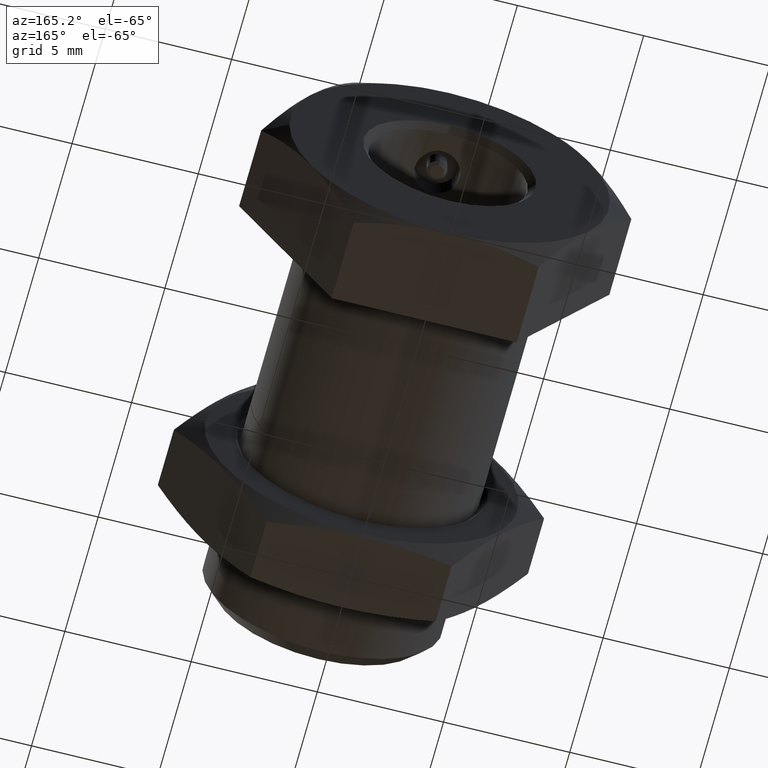
[diagram: clean part render]
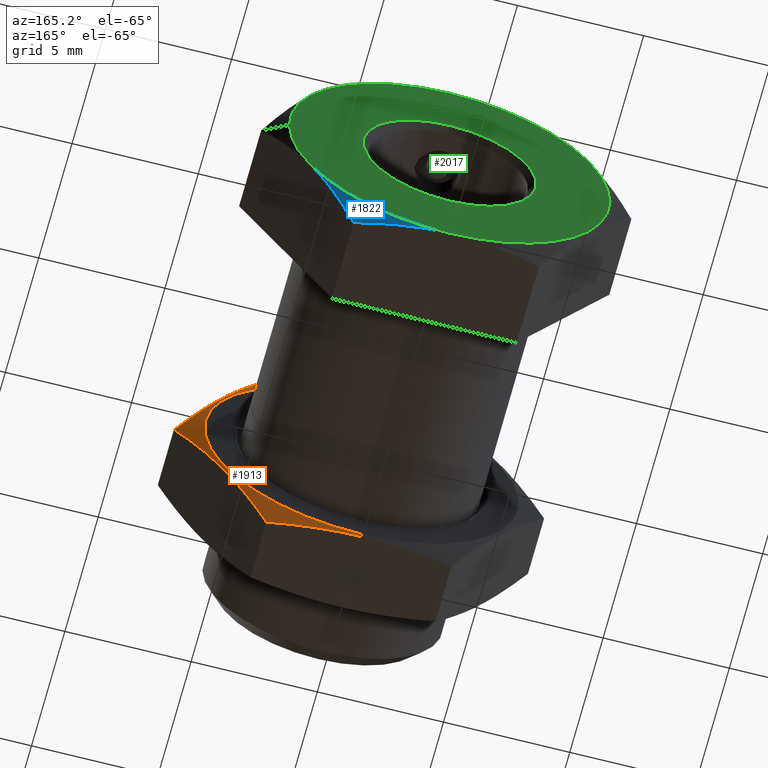
[diagram: same view with three faces highlighted in distinct colors, each labeled with its STEP entity id]
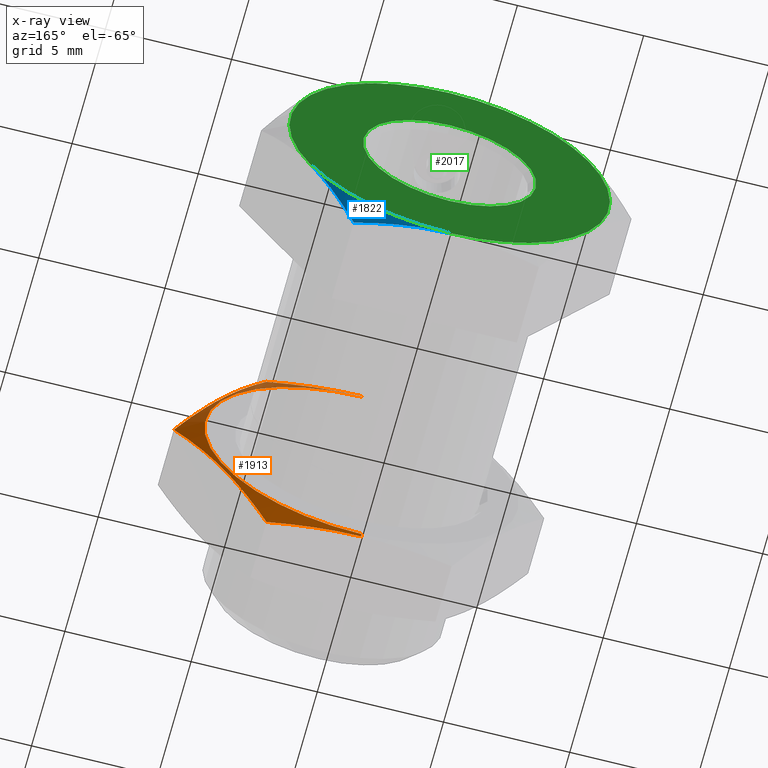
[diagram: x-ray of the same camera — body ghosted, the three highlighted faces saturated]
A machine part, auxiliary view with three faces highlighted in distinct colors.
The next image is the same camera in x-ray (body ghosted, the three faces saturated) — at least one of them is partly hidden behind the body in this view.
Their STEP definitions:

[orange] entity #1913 — the highlighted conical surface has half-angle 71.045 deg.
#116 = DIRECTION ( 'NONE',  ( 0.0000000000000000000, -0.3248216508052531000, -0.9457752878819314400 ) ) ;
#117 = VECTOR ( 'NONE', #116, 1000.000000000000100 ) ;
#119 = CARTESIAN_POINT ( 'NONE',  ( 7.682096070792249700E-015, -3.367507870261867700, -6.222999999999999000 ) ) ;
#120 = LINE ( 'NONE', #119, #117 ) ;
#164 = CARTESIAN_POINT ( 'NONE',  ( 7.682111076404425900E-015, -3.411125366067509800, -6.350000000000008500 ) ) ;
#165 = CARTESIAN_POINT ( 'NONE',  ( 3.666174209354143600, -3.748507870261866200, -6.350000000000008500 ) ) ;
#176 = CARTESIAN_POINT ( 'NONE',  ( 7.682111076404425900E-015, -3.411125366067509800, -6.350000000000008500 ) ) ;
#183 = CARTESIAN_POINT ( 'NONE',  ( 3.666174209354143600, -3.748507870261866200, -6.350000000000008500 ) ) ;
#195 = CARTESIAN_POINT ( 'NONE',  ( 2.446884542987390000, -3.539128492668910400, -6.350000000000008500 ) ) ;
#199 = B_SPLINE_CURVE_WITH_KNOTS ( 'NONE', 3,
 ( #183, #195, #200, #176 ),
 .UNSPECIFIED., .F., .F.,
 ( 4, 4 ),
 ( 0.01358308247355690200, 0.01728310669444302300 ),
 .UNSPECIFIED. ) ;
#200 = CARTESIAN_POINT ( 'NONE',  ( 1.225270426781273500, -3.411125366067509800, -6.350000000000008500 ) ) ;
#222 = B_SPLINE_CURVE_WITH_KNOTS ( 'NONE', 3,
 ( #238, #237, #236, #235, #234 ),
 .UNSPECIFIED., .F., .F.,
 ( 4, 1, 4 ),
 ( 2.309401076775709000E-007, 0.003666405149461804700, 0.007332579358815932400 ),
 .UNSPECIFIED. ) ;
#224 = B_SPLINE_CURVE_WITH_KNOTS ( 'NONE', 3,
 ( #261, #260, #259, #258 ),
 .UNSPECIFIED., .F., .F.,
 ( 4, 4 ),
 ( 0.009901791686967418800, 0.01361043998818569500 ),
 .UNSPECIFIED. ) ;
#226 = CARTESIAN_POINT ( 'NONE',  ( 7.682096070792249700E-015, -3.367507870261867700, -6.222999999999999000 ) ) ;
#234 = CARTESIAN_POINT ( 'NONE',  ( 3.666174209354143600, -3.748507870261866200, -6.350000000000008500 ) ) ;
#235 = CARTESIAN_POINT ( 'NONE',  ( 4.277203244246500400, -3.538653095722176500, -5.291666666666675800 ) ) ;
#236 = CARTESIAN_POINT ( 'NONE',  ( 5.499261314031207900, -3.283597636412850300, -3.175000000000006000 ) ) ;
#237 = CARTESIAN_POINT ( 'NONE',  ( 6.721319383815915300, -3.538653095722174200, -1.058333333333336000 ) ) ;
#238 = CARTESIAN_POINT ( 'NONE',  ( 7.332348418708273900, -3.748507870261867500, -2.494517478465203100E-015 ) ) ;
#258 = CARTESIAN_POINT ( 'NONE',  ( 3.666174209354145400, -3.748507870261867500, 6.350000000000012100 ) ) ;
#259 = CARTESIAN_POINT ( 'NONE',  ( 2.446884542987389600, -3.539128492668912200, 6.350000000000016500 ) ) ;
#260 = CARTESIAN_POINT ( 'NONE',  ( 1.225270426781273100, -3.411125366067512900, 6.350000000000016500 ) ) ;
#261 = CARTESIAN_POINT ( 'NONE',  ( 8.459761793861205600E-015, -3.411125366067512900, 6.350000000000017400 ) ) ;
#1860 = EDGE_LOOP ( 'NONE', ( #2226, #2217, #2184, #1911, #2219, #2189, #2191 ) ) ;
#1907 = EDGE_CURVE ( 'NONE', #1917, #2227, #2713, .T. ) ;
#1909 = VERTEX_POINT ( 'NONE', #2845 ) ;
#1911 = ORIENTED_EDGE ( 'NONE', *, *, #1924, .T. ) ;
#1913 = ADVANCED_FACE ( 'NONE', ( #2839 ), #2773, .T. ) ;
#1915 = VERTEX_POINT ( 'NONE', #2766 ) ;
#1917 = VERTEX_POINT ( 'NONE', #2765 ) ;
#1918 = EDGE_CURVE ( 'NONE', #1917, #1909, #2764, .T. ) ;
#1923 = VERTEX_POINT ( 'NONE', #2759 ) ;
#1924 = EDGE_CURVE ( 'NONE', #1915, #1923, #2752, .T. ) ;
#2180 = EDGE_CURVE ( 'NONE', #2227, #2206, #120, .T. ) ;
#2184 = ORIENTED_EDGE ( 'NONE', *, *, #2225, .T. ) ;
#2189 = ORIENTED_EDGE ( 'NONE', *, *, #2190, .T. ) ;
#2190 = EDGE_CURVE ( 'NONE', #2205, #2206, #199, .T. ) ;
#2191 = ORIENTED_EDGE ( 'NONE', *, *, #2180, .F. ) ;
#2205 = VERTEX_POINT ( 'NONE', #165 ) ;
#2206 = VERTEX_POINT ( 'NONE', #164 ) ;
#2217 = ORIENTED_EDGE ( 'NONE', *, *, #1918, .T. ) ;
#2219 = ORIENTED_EDGE ( 'NONE', *, *, #2220, .T. ) ;
#2220 = EDGE_CURVE ( 'NONE', #1923, #2205, #222, .T. ) ;
#2225 = EDGE_CURVE ( 'NONE', #1909, #1915, #224, .T. ) ;
#2226 = ORIENTED_EDGE ( 'NONE', *, *, #1907, .F. ) ;
#2227 = VERTEX_POINT ( 'NONE', #226 ) ;
#2713 = CIRCLE ( 'NONE', #2849, 6.222999999999999000 ) ;
#2744 = CARTESIAN_POINT ( 'NONE',  ( 7.332348418708273900, -3.748507870261867500, -2.494517478465203100E-015 ) ) ;
#2745 = CARTESIAN_POINT ( 'NONE',  ( 6.721319383815918900, -3.538653095722175100, 1.058333333333334700 ) ) ;
#2746 = CARTESIAN_POINT ( 'NONE',  ( 5.499261314031211400, -3.283597636412850300, 3.175000000000006900 ) ) ;
#2749 = CARTESIAN_POINT ( 'NONE',  ( 4.277203244246500400, -3.538653095722175600, 5.291666666666675800 ) ) ;
#2750 = CARTESIAN_POINT ( 'NONE',  ( 3.666174209354145400, -3.748507870261867500, 6.350000000000012100 ) ) ;
#2752 = B_SPLINE_CURVE_WITH_KNOTS ( 'NONE', 3,
 ( #2750, #2749, #2746, #2745, #2744 ),
 .UNSPECIFIED., .F., .F.,
 ( 4, 1, 4 ),
 ( 2.309401076795080300E-007, 0.003666405149461809000, 0.007332579358815940200 ),
 .UNSPECIFIED. ) ;
#2759 = CARTESIAN_POINT ( 'NONE',  ( 7.332348418708273900, -3.748507870261867500, -2.494517478465203100E-015 ) ) ;
#2761 = DIRECTION ( 'NONE',  ( 1.158240679017273500E-016, -0.3248216508052531000, 0.9457752878819314400 ) ) ;
#2762 = VECTOR ( 'NONE', #2761, 1000.000000000000100 ) ;
#2763 = CARTESIAN_POINT ( 'NONE',  ( 8.444193773901648200E-015, -3.367507870261867700, 6.222999999999999000 ) ) ;
#2764 = LINE ( 'NONE', #2763, #2762 ) ;
#2765 = CARTESIAN_POINT ( 'NONE',  ( 8.444193773901648200E-015, -3.367507870261867700, 6.222999999999999000 ) ) ;
#2766 = CARTESIAN_POINT ( 'NONE',  ( 3.666174209354145400, -3.748507870261867500, 6.350000000000012100 ) ) ;
#2770 = DIRECTION ( 'NONE',  ( 0.0000000000000000000, 0.0000000000000000000, -1.000000000000000000 ) ) ;
#2771 = DIRECTION ( 'NONE',  ( 0.0000000000000000000, -1.000000000000000000, 0.0000000000000000000 ) ) ;
#2772 = AXIS2_PLACEMENT_3D ( 'NONE', #2775, #2771, #2770 ) ;
#2773 = CONICAL_SURFACE ( 'NONE', #2772, 6.222999999999999000, 1.239973179411668200 ) ;
#2775 = CARTESIAN_POINT ( 'NONE',  ( 7.682096070792249700E-015, -3.367507870261867700, 1.075677355000073600E-016 ) ) ;
#2839 = FACE_OUTER_BOUND ( 'NONE', #1860, .T. ) ;
#2845 = CARTESIAN_POINT ( 'NONE',  ( 8.459761793861205600E-015, -3.411125366067512900, 6.350000000000017400 ) ) ;
#2846 = DIRECTION ( 'NONE',  ( 0.0000000000000000000, 0.0000000000000000000, 1.000000000000000000 ) ) ;
#2847 = DIRECTION ( 'NONE',  ( 0.0000000000000000000, 1.000000000000000000, 0.0000000000000000000 ) ) ;
#2848 = CARTESIAN_POINT ( 'NONE',  ( 7.682096070792249700E-015, -3.367507870261867700, 1.075677355000073600E-016 ) ) ;
#2849 = AXIS2_PLACEMENT_3D ( 'NONE', #2848, #2847, #2846 ) ;

[blue] entity #1822 — the highlighted conical surface has half-angle 62.655 deg.
#63 = CARTESIAN_POINT ( 'NONE',  ( 3.070962758381275300, 9.488400292063285900, -6.349999999999985400 ) ) ;
#64 = CARTESIAN_POINT ( 'NONE',  ( 2.469031070083875300, 9.616122389518416500, -6.349999999999989000 ) ) ;
#65 = B_SPLINE_CURVE_WITH_KNOTS ( 'NONE', 3,
 ( #91, #63, #64, #79, #71, #80 ),
 .UNSPECIFIED., .F., .F.,
 ( 4, 2, 4 ),
 ( 0.003390406795999886100, 0.005234762367035991500, 0.007079117938072096800 ),
 .UNSPECIFIED. ) ;
#71 = CARTESIAN_POINT ( 'NONE',  ( 0.6192550958376271700, 9.842500000000008200, -6.349999999999992500 ) ) ;
#78 = CARTESIAN_POINT ( 'NONE',  ( 3.666174209354119200, 9.334499999999998500, -6.349999999999998800 ) ) ;
#79 = CARTESIAN_POINT ( 'NONE',  ( 1.245196941978092400, 9.793771977738952500, -6.349999999999989900 ) ) ;
#80 = CARTESIAN_POINT ( 'NONE',  ( 6.009258394948640900E-015, 9.842500000000001100, -6.349999999999999600 ) ) ;
#91 = CARTESIAN_POINT ( 'NONE',  ( 3.666174209354119200, 9.334499999999998500, -6.349999999999998800 ) ) ;
#98 = CARTESIAN_POINT ( 'NONE',  ( 6.009258394948640900E-015, 9.842500000000001100, -6.349999999999999600 ) ) ;
#328 = DIRECTION ( 'NONE',  ( 0.0000000000000000000, 0.0000000000000000000, 1.000000000000000000 ) ) ;
#537 = DIRECTION ( 'NONE',  ( 0.0000000000000000000, 1.000000000000000000, 0.0000000000000000000 ) ) ;
#538 = CARTESIAN_POINT ( 'NONE',  ( 1.109547544918986300E-031, 9.842500000000001100, 1.623161223827038900E-015 ) ) ;
#539 = AXIS2_PLACEMENT_3D ( 'NONE', #538, #537, #328 ) ;
#540 = CIRCLE ( 'NONE', #539, 6.349999999999999600 ) ;
#1541 = CARTESIAN_POINT ( 'NONE',  ( 3.966551295709400000, 9.489833440724803300, -5.829731625003148600 ) ) ;
#1542 = CARTESIAN_POINT ( 'NONE',  ( 4.269406708029541700, 9.617927351132593100, -5.305170663517436000 ) ) ;
#1547 = CARTESIAN_POINT ( 'NONE',  ( 4.882319758066563200, 9.794954787145878000, -4.243574120231317100 ) ) ;
#1548 = CARTESIAN_POINT ( 'NONE',  ( 5.192827168599066600, 9.842500000000001100, -3.705759509062368700 ) ) ;
#1549 = CARTESIAN_POINT ( 'NONE',  ( 3.666174209354119200, 9.334499999999998500, -6.349999999999998800 ) ) ;
#1558 = B_SPLINE_CURVE_WITH_KNOTS ( 'NONE', 3,
 ( #1560, #1548, #1547, #1542, #1541, #1549 ),
 .UNSPECIFIED., .F., .F.,
 ( 4, 2, 4 ),
 ( 0.003697693212916759500, 0.005528403585783625000, 0.007359113958650491000 ),
 .UNSPECIFIED. ) ;
#1560 = CARTESIAN_POINT ( 'NONE',  ( 5.499261314031182100, 9.842500000000001100, -3.174999999999994000 ) ) ;
#1620 = CARTESIAN_POINT ( 'NONE',  ( 5.499261314031182100, 9.842500000000001100, -3.174999999999994000 ) ) ;
#1822 = ADVANCED_FACE ( 'NONE', ( #2444 ), #2687, .T. ) ;
#1823 = ORIENTED_EDGE ( 'NONE', *, *, #1985, .F. ) ;
#1844 = ORIENTED_EDGE ( 'NONE', *, *, #1938, .T. ) ;
#1852 = ORIENTED_EDGE ( 'NONE', *, *, #2167, .T. ) ;
#1896 = EDGE_LOOP ( 'NONE', ( #1852, #1823, #1844 ) ) ;
#1938 = EDGE_CURVE ( 'NONE', #2094, #2168, #1558, .T. ) ;
#1985 = EDGE_CURVE ( 'NONE', #2094, #2169, #540, .T. ) ;
#2094 = VERTEX_POINT ( 'NONE', #1620 ) ;
#2167 = EDGE_CURVE ( 'NONE', #2168, #2169, #65, .T. ) ;
#2168 = VERTEX_POINT ( 'NONE', #78 ) ;
#2169 = VERTEX_POINT ( 'NONE', #98 ) ;
#2444 = FACE_OUTER_BOUND ( 'NONE', #1896, .T. ) ;
#2584 = CARTESIAN_POINT ( 'NONE',  ( 1.109547544918986300E-031, 9.842500000000001100, 0.0000000000000000000 ) ) ;
#2600 = DIRECTION ( 'NONE',  ( 1.000000000000000000, 0.0000000000000000000, 0.0000000000000000000 ) ) ;
#2637 = DIRECTION ( 'NONE',  ( 1.321861932418191900E-016, -1.000000000000000000, 0.0000000000000000000 ) ) ;
#2638 = AXIS2_PLACEMENT_3D ( 'NONE', #2584, #2637, #2600 ) ;
#2687 = CONICAL_SURFACE ( 'NONE', #2638, 6.349999999999999600, 1.093540295016933100 ) ;

[green] entity #2017 — the highlighted planar face has unit normal (0, 1, 0).
#98 = CARTESIAN_POINT ( 'NONE',  ( 6.009258394948640900E-015, 9.842500000000001100, -6.349999999999999600 ) ) ;
#328 = DIRECTION ( 'NONE',  ( 0.0000000000000000000, 0.0000000000000000000, 1.000000000000000000 ) ) ;
#537 = DIRECTION ( 'NONE',  ( 0.0000000000000000000, 1.000000000000000000, 0.0000000000000000000 ) ) ;
#538 = CARTESIAN_POINT ( 'NONE',  ( 1.109547544918986300E-031, 9.842500000000001100, 1.623161223827038900E-015 ) ) ;
#539 = AXIS2_PLACEMENT_3D ( 'NONE', #538, #537, #328 ) ;
#540 = CIRCLE ( 'NONE', #539, 6.349999999999999600 ) ;
#591 = AXIS2_PLACEMENT_3D ( 'NONE', #609, #721, #718 ) ;
#609 = CARTESIAN_POINT ( 'NONE',  ( 1.109547544918986300E-031, 9.842500000000001100, 1.623161223827038900E-015 ) ) ;
#686 = CIRCLE ( 'NONE', #591, 6.349999999999999600 ) ;
#718 = DIRECTION ( 'NONE',  ( 0.0000000000000000000, 0.0000000000000000000, 1.000000000000000000 ) ) ;
#721 = DIRECTION ( 'NONE',  ( 0.0000000000000000000, 1.000000000000000000, 0.0000000000000000000 ) ) ;
#733 = DIRECTION ( 'NONE',  ( 0.0000000000000000000, 1.000000000000000000, 0.0000000000000000000 ) ) ;
#734 = AXIS2_PLACEMENT_3D ( 'NONE', #766, #733, #1037 ) ;
#735 = CIRCLE ( 'NONE', #734, 6.349999999999999600 ) ;
#741 = DIRECTION ( 'NONE',  ( -1.000000000000000000, 0.0000000000000000000, 0.0000000000000000000 ) ) ;
#742 = DIRECTION ( 'NONE',  ( -1.321861932418191900E-016, 1.000000000000000000, 0.0000000000000000000 ) ) ;
#766 = CARTESIAN_POINT ( 'NONE',  ( 1.109547544918986300E-031, 9.842500000000001100, 1.623161223827038900E-015 ) ) ;
#786 = CIRCLE ( 'NONE', #801, 6.349999999999999600 ) ;
#800 = CARTESIAN_POINT ( 'NONE',  ( 1.109547544918986300E-031, 9.842500000000001100, 0.0000000000000000000 ) ) ;
#801 = AXIS2_PLACEMENT_3D ( 'NONE', #800, #742, #741 ) ;
#886 = CARTESIAN_POINT ( 'NONE',  ( -5.499261314031183900, 9.842500000000001100, 3.175000000000001200 ) ) ;
#907 = DIRECTION ( 'NONE',  ( 0.0000000000000000000, 1.000000000000000000, 0.0000000000000000000 ) ) ;
#908 = CARTESIAN_POINT ( 'NONE',  ( -3.666174209354119200, 9.842500000000001100, -6.349999999999993400 ) ) ;
#909 = AXIS2_PLACEMENT_3D ( 'NONE', #908, #907, #960 ) ;
#934 = FACE_BOUND ( 'NONE', #1939, .T. ) ;
#936 = CARTESIAN_POINT ( 'NONE',  ( 1.109547544918986300E-031, 9.842500000000001100, 1.623161223827038900E-015 ) ) ;
#959 = FACE_OUTER_BOUND ( 'NONE', #2013, .T. ) ;
#960 = DIRECTION ( 'NONE',  ( 0.0000000000000000000, 0.0000000000000000000, 1.000000000000000000 ) ) ;
#998 = PLANE ( 'NONE',  #909 ) ;
#1004 = AXIS2_PLACEMENT_3D ( 'NONE', #936, #1023, #1022 ) ;
#1005 = CIRCLE ( 'NONE', #1004, 6.349999999999999600 ) ;
#1022 = DIRECTION ( 'NONE',  ( 0.0000000000000000000, 0.0000000000000000000, 1.000000000000000000 ) ) ;
#1023 = DIRECTION ( 'NONE',  ( 0.0000000000000000000, 1.000000000000000000, 0.0000000000000000000 ) ) ;
#1037 = DIRECTION ( 'NONE',  ( 0.0000000000000000000, 0.0000000000000000000, 1.000000000000000000 ) ) ;
#1038 = CARTESIAN_POINT ( 'NONE',  ( 0.0000000000000000000, 9.842500000000001100, 0.0000000000000000000 ) ) ;
#1072 = CARTESIAN_POINT ( 'NONE',  ( 0.0000000000000000000, 9.842500000000001100, 3.429000000000008300 ) ) ;
#1078 = DIRECTION ( 'NONE',  ( 0.0000000000000000000, 0.0000000000000000000, 1.000000000000000000 ) ) ;
#1083 = CIRCLE ( 'NONE', #1107, 3.429000000000008300 ) ;
#1106 = DIRECTION ( 'NONE',  ( 0.0000000000000000000, -1.000000000000000000, 0.0000000000000000000 ) ) ;
#1107 = AXIS2_PLACEMENT_3D ( 'NONE', #1038, #1106, #1078 ) ;
#1131 = CARTESIAN_POINT ( 'NONE',  ( 4.199313874276284200E-016, 9.842500000000001100, -3.429000000000008300 ) ) ;
#1539 = DIRECTION ( 'NONE',  ( 0.0000000000000000000, 0.0000000000000000000, 1.000000000000000000 ) ) ;
#1574 = AXIS2_PLACEMENT_3D ( 'NONE', #1586, #1601, #1600 ) ;
#1575 = CIRCLE ( 'NONE', #1574, 6.349999999999999600 ) ;
#1586 = CARTESIAN_POINT ( 'NONE',  ( 1.109547544918986300E-031, 9.842500000000001100, 1.623161223827038900E-015 ) ) ;
#1600 = DIRECTION ( 'NONE',  ( 0.0000000000000000000, 0.0000000000000000000, 1.000000000000000000 ) ) ;
#1601 = DIRECTION ( 'NONE',  ( 0.0000000000000000000, 1.000000000000000000, 0.0000000000000000000 ) ) ;
#1610 = CARTESIAN_POINT ( 'NONE',  ( 1.109547544918986300E-031, 9.842500000000001100, 6.349999999999999600 ) ) ;
#1620 = CARTESIAN_POINT ( 'NONE',  ( 5.499261314031182100, 9.842500000000001100, -3.174999999999994000 ) ) ;
#1621 = CARTESIAN_POINT ( 'NONE',  ( 6.349999999999998800, 9.842500000000001100, -7.703719777548943400E-031 ) ) ;
#1628 = CARTESIAN_POINT ( 'NONE',  ( 5.499261314031182100, 9.842500000000001100, 3.175000000000005200 ) ) ;
#1665 = CARTESIAN_POINT ( 'NONE',  ( -5.499261314031184800, 9.842500000000001100, -3.174999999999999800 ) ) ;
#1927 = EDGE_CURVE ( 'NONE', #2102, #2105, #2743, .T. ) ;
#1928 = ORIENTED_EDGE ( 'NONE', *, *, #1927, .T. ) ;
#1931 = EDGE_CURVE ( 'NONE', #2022, #2025, #2738, .T. ) ;
#1936 = ORIENTED_EDGE ( 'NONE', *, *, #2096, .T. ) ;
#1939 = EDGE_LOOP ( 'NONE', ( #2019, #2012 ) ) ;
#1984 = ORIENTED_EDGE ( 'NONE', *, *, #1985, .T. ) ;
#1985 = EDGE_CURVE ( 'NONE', #2094, #2169, #540, .T. ) ;
#1989 = ORIENTED_EDGE ( 'NONE', *, *, #1990, .T. ) ;
#1990 = EDGE_CURVE ( 'NONE', #2105, #2093, #686, .T. ) ;
#1991 = ORIENTED_EDGE ( 'NONE', *, *, #2010, .T. ) ;
#2000 = VERTEX_POINT ( 'NONE', #886 ) ;
#2010 = EDGE_CURVE ( 'NONE', #2000, #2102, #786, .T. ) ;
#2012 = ORIENTED_EDGE ( 'NONE', *, *, #1931, .T. ) ;
#2013 = EDGE_LOOP ( 'NONE', ( #1991, #1928, #1989, #1936, #1984, #2018, #2015 ) ) ;
#2014 = EDGE_CURVE ( 'NONE', #2169, #2126, #735, .T. ) ;
#2015 = ORIENTED_EDGE ( 'NONE', *, *, #2016, .T. ) ;
#2016 = EDGE_CURVE ( 'NONE', #2126, #2000, #1005, .T. ) ;
#2017 = ADVANCED_FACE ( 'NONE', ( #934, #959 ), #998, .T. ) ;
#2018 = ORIENTED_EDGE ( 'NONE', *, *, #2014, .T. ) ;
#2019 = ORIENTED_EDGE ( 'NONE', *, *, #2024, .T. ) ;
#2022 = VERTEX_POINT ( 'NONE', #1131 ) ;
#2024 = EDGE_CURVE ( 'NONE', #2025, #2022, #1083, .T. ) ;
#2025 = VERTEX_POINT ( 'NONE', #1072 ) ;
#2093 = VERTEX_POINT ( 'NONE', #1621 ) ;
#2094 = VERTEX_POINT ( 'NONE', #1620 ) ;
#2096 = EDGE_CURVE ( 'NONE', #2093, #2094, #1575, .T. ) ;
#2102 = VERTEX_POINT ( 'NONE', #1610 ) ;
#2105 = VERTEX_POINT ( 'NONE', #1628 ) ;
#2126 = VERTEX_POINT ( 'NONE', #1665 ) ;
#2169 = VERTEX_POINT ( 'NONE', #98 ) ;
#2735 = DIRECTION ( 'NONE',  ( 0.0000000000000000000, -1.000000000000000000, 0.0000000000000000000 ) ) ;
#2736 = CARTESIAN_POINT ( 'NONE',  ( 0.0000000000000000000, 9.842500000000001100, 0.0000000000000000000 ) ) ;
#2737 = AXIS2_PLACEMENT_3D ( 'NONE', #2736, #2735, #1539 ) ;
#2738 = CIRCLE ( 'NONE', #2737, 3.429000000000008300 ) ;
#2739 = DIRECTION ( 'NONE',  ( 0.0000000000000000000, 0.0000000000000000000, 1.000000000000000000 ) ) ;
#2740 = DIRECTION ( 'NONE',  ( 0.0000000000000000000, 1.000000000000000000, 0.0000000000000000000 ) ) ;
#2741 = CARTESIAN_POINT ( 'NONE',  ( 1.109547544918986300E-031, 9.842500000000001100, 1.623161223827038900E-015 ) ) ;
#2742 = AXIS2_PLACEMENT_3D ( 'NONE', #2741, #2740, #2739 ) ;
#2743 = CIRCLE ( 'NONE', #2742, 6.349999999999999600 ) ;